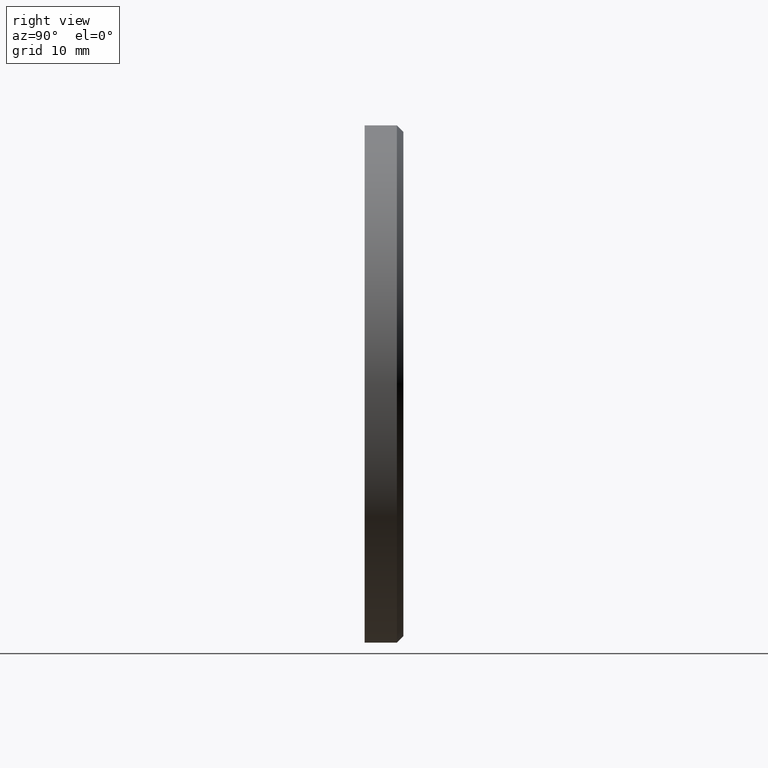
[diagram: clean part render]
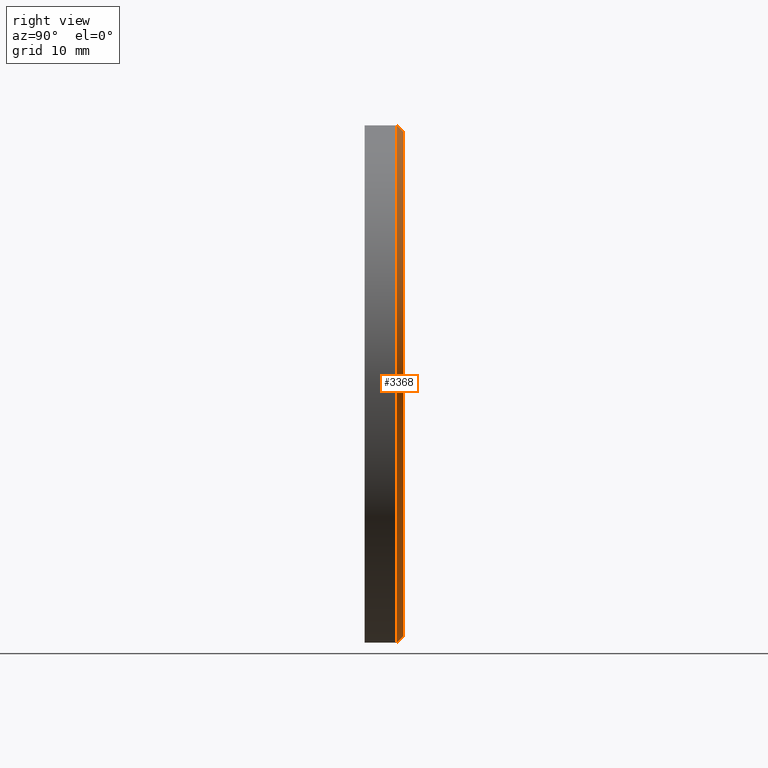
[diagram: same view with one face highlighted and labeled with its STEP entity id]
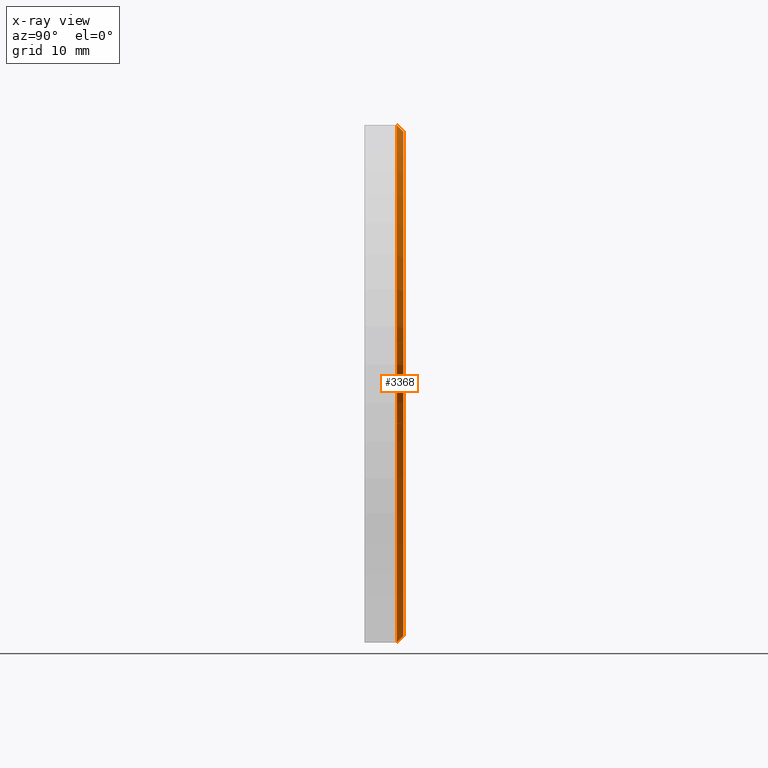
[diagram: x-ray of the same camera — body ghosted, the highlighted face saturated]
A machine part, right view. The second image highlights one B-rep face of the part: STEP entity #3368.
The next image is the same camera in x-ray: the body ghosted, the highlighted face saturated — about 0% of this face is hidden behind the body in this view.
In plain terms, the highlighted conical surface has half-angle 45 deg.
Its self-contained STEP definition (entity closure, byte-faithful):
#735 = DIRECTION ( 'NONE',  ( 0.000000000000000000, -0.7071067811865525687, -0.7071067811865425767 ) ) ;
#1098 = LINE ( 'NONE', #15001, #12103 ) ;
#1276 = LINE ( 'NONE', #4237, #12832 ) ;
#1317 = CIRCLE ( 'NONE', #14095, 39.00000000000003553 ) ;
#1355 = CARTESIAN_POINT ( 'NONE',  ( 4.837354856632047030E-15, 6.000000000000000000, 39.00000000000003553 ) ) ;
#2517 = CARTESIAN_POINT ( 'NONE',  ( 0.000000000000000000, 6.000000000000000000, 0.000000000000000000 ) ) ;
#3368 = ADVANCED_FACE ( 'NONE', ( #14383 ), #13241, .T. ) ;
#3800 = AXIS2_PLACEMENT_3D ( 'NONE', #6772, #5440, #13765 ) ;
#4237 = CARTESIAN_POINT ( 'NONE',  ( 0.000000000000000000, 6.000000000000000000, -39.00000000000003553 ) ) ;
#5330 = DIRECTION ( 'NONE',  ( 8.659560562354873694E-17, -0.7071067811865525687, 0.7071067811865425767 ) ) ;
#5440 = DIRECTION ( 'NONE',  ( 0.000000000000000000, -1.000000000000000000, 0.000000000000000000 ) ) ;
#5913 = VERTEX_POINT ( 'NONE', #13934 ) ;
#6226 = CARTESIAN_POINT ( 'NONE',  ( 0.000000000000000000, 6.000000000000000000, 0.000000000000000000 ) ) ;
#6240 = EDGE_CURVE ( 'NONE', #7010, #14784, #1276, .T. ) ;
#6701 = CIRCLE ( 'NONE', #3800, 40.00000000000000000 ) ;
#6772 = CARTESIAN_POINT ( 'NONE',  ( 0.000000000000000000, 5.000000000000020428, 0.000000000000000000 ) ) ;
#7010 = VERTEX_POINT ( 'NONE', #10415 ) ;
#9233 = EDGE_LOOP ( 'NONE', ( #12664, #11774, #13027, #14178 ) ) ;
#9466 = DIRECTION ( 'NONE',  ( 0.000000000000000000, 1.000000000000000000, 0.000000000000000000 ) ) ;
#10415 = CARTESIAN_POINT ( 'NONE',  ( 0.000000000000000000, 6.000000000000000000, -39.00000000000003553 ) ) ;
#11039 = VERTEX_POINT ( 'NONE', #1355 ) ;
#11053 = DIRECTION ( 'NONE',  ( 0.000000000000000000, 0.000000000000000000, -1.000000000000000000 ) ) ;
#11464 = AXIS2_PLACEMENT_3D ( 'NONE', #6226, #13406, #11053 ) ;
#11774 = ORIENTED_EDGE ( 'NONE', *, *, #13531, .T. ) ;
#11884 = DIRECTION ( 'NONE',  ( 0.000000000000000000, 0.000000000000000000, 1.000000000000000000 ) ) ;
#12103 = VECTOR ( 'NONE', #5330, 999.9999999999998863 ) ;
#12664 = ORIENTED_EDGE ( 'NONE', *, *, #14937, .F. ) ;
#12832 = VECTOR ( 'NONE', #735, 999.9999999999998863 ) ;
#13027 = ORIENTED_EDGE ( 'NONE', *, *, #13232, .F. ) ;
#13232 = EDGE_CURVE ( 'NONE', #14784, #5913, #6701, .T. ) ;
#13241 = CONICAL_SURFACE ( 'NONE', #11464, 39.00000000000003553, 0.7853981633974412846 ) ;
#13406 = DIRECTION ( 'NONE',  ( 0.000000000000000000, -1.000000000000000000, 0.000000000000000000 ) ) ;
#13531 = EDGE_CURVE ( 'NONE', #11039, #5913, #1098, .T. ) ;
#13624 = CARTESIAN_POINT ( 'NONE',  ( 0.000000000000000000, 5.000000000000020428, -40.00000000000000000 ) ) ;
#13765 = DIRECTION ( 'NONE',  ( 0.000000000000000000, 0.000000000000000000, 1.000000000000000000 ) ) ;
#13934 = CARTESIAN_POINT ( 'NONE',  ( 4.898587196589413026E-15, 5.000000000000020428, 40.00000000000000000 ) ) ;
#14095 = AXIS2_PLACEMENT_3D ( 'NONE', #2517, #9466, #11884 ) ;
#14178 = ORIENTED_EDGE ( 'NONE', *, *, #6240, .F. ) ;
#14383 = FACE_OUTER_BOUND ( 'NONE', #9233, .T. ) ;
#14784 = VERTEX_POINT ( 'NONE', #13624 ) ;
#14937 = EDGE_CURVE ( 'NONE', #11039, #7010, #1317, .T. ) ;
#15001 = CARTESIAN_POINT ( 'NONE',  ( 4.776122516674681822E-15, 6.000000000000000000, 39.00000000000003553 ) ) ;